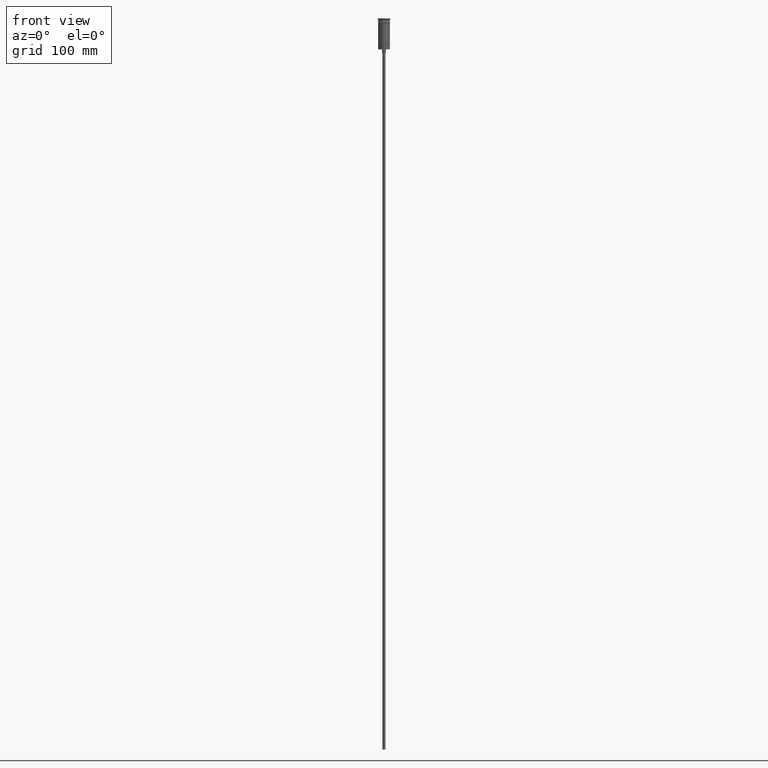
[diagram: clean part render]
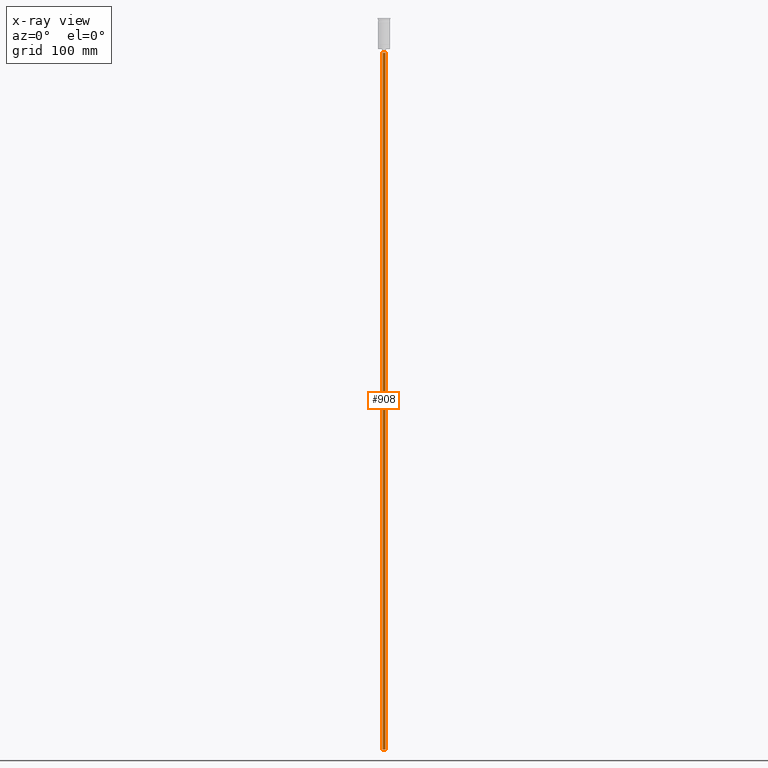
[diagram: x-ray — body ghosted, one internal face saturated and labeled with its STEP entity id]
A machine part, front view, then the same camera in x-ray: the body is ghosted and one INTERNAL B-rep face — a face not visible from any outside direction — is saturated and labeled: STEP entity #908.
In plain terms, the highlighted cylindrical surface (edge-blend (fillet) strip) has radius 1.25 mm, axis along (-0, -0, 1).
Its self-contained STEP definition (entity closure, byte-faithful):
#60 = CARTESIAN_POINT ( 'NONE',  ( 1.250000000000000000, 0.000000000000000000, -29.50000000000000000 ) ) ;
#73 = EDGE_CURVE ( 'NONE', #167, #1363, #1596, .T. ) ;
#117 = CARTESIAN_POINT ( 'NONE',  ( 0.000000000000000000, 0.000000000000000000, -626.5000000000000000 ) ) ;
#167 = VERTEX_POINT ( 'NONE', #487 ) ;
#214 = DIRECTION ( 'NONE',  ( 0.000000000000000000, 0.000000000000000000, -1.000000000000000000 ) ) ;
#241 = LINE ( 'NONE', #741, #1236 ) ;
#314 = CARTESIAN_POINT ( 'NONE',  ( 0.000000000000000000, 0.000000000000000000, -626.5000000000000000 ) ) ;
#330 = VECTOR ( 'NONE', #1095, 1000.000000000000000 ) ;
#487 = CARTESIAN_POINT ( 'NONE',  ( -1.250000000000000000, 1.530808498934191571E-16, -29.50000000000000000 ) ) ;
#528 = EDGE_CURVE ( 'NONE', #1487, #167, #241, .T. ) ;
#554 = ORIENTED_EDGE ( 'NONE', *, *, #680, .F. ) ;
#560 = CYLINDRICAL_SURFACE ( 'NONE', #1011, 1.250000000000000000 ) ;
#579 = EDGE_LOOP ( 'NONE', ( #1356, #749, #790, #554 ) ) ;
#590 = AXIS2_PLACEMENT_3D ( 'NONE', #1329, #1073, #704 ) ;
#603 = CARTESIAN_POINT ( 'NONE',  ( 1.250000000000000000, 0.000000000000000000, -626.5000000000000000 ) ) ;
#680 = EDGE_CURVE ( 'NONE', #1480, #1363, #1457, .T. ) ;
#704 = DIRECTION ( 'NONE',  ( -1.000000000000000000, 0.000000000000000000, 0.000000000000000000 ) ) ;
#741 = CARTESIAN_POINT ( 'NONE',  ( -1.250000000000000000, 1.530808498934191571E-16, -626.5000000000000000 ) ) ;
#749 = ORIENTED_EDGE ( 'NONE', *, *, #528, .T. ) ;
#790 = ORIENTED_EDGE ( 'NONE', *, *, #73, .T. ) ;
#908 = ADVANCED_FACE ( 'NONE', ( #1253 ), #560, .T. ) ;
#947 = EDGE_CURVE ( 'NONE', #1487, #1480, #1085, .T. ) ;
#967 = DIRECTION ( 'NONE',  ( -1.000000000000000000, 0.000000000000000000, 0.000000000000000000 ) ) ;
#1011 = AXIS2_PLACEMENT_3D ( 'NONE', #314, #1417, #1554 ) ;
#1073 = DIRECTION ( 'NONE',  ( 0.000000000000000000, 0.000000000000000000, -1.000000000000000000 ) ) ;
#1085 = CIRCLE ( 'NONE', #1292, 1.250000000000000000 ) ;
#1095 = DIRECTION ( 'NONE',  ( -0.000000000000000000, -0.000000000000000000, 1.000000000000000000 ) ) ;
#1236 = VECTOR ( 'NONE', #1237, 1000.000000000000000 ) ;
#1237 = DIRECTION ( 'NONE',  ( -0.000000000000000000, -0.000000000000000000, 1.000000000000000000 ) ) ;
#1253 = FACE_OUTER_BOUND ( 'NONE', #579, .T. ) ;
#1292 = AXIS2_PLACEMENT_3D ( 'NONE', #117, #214, #967 ) ;
#1307 = CARTESIAN_POINT ( 'NONE',  ( -1.250000000000000000, 1.530808498934191571E-16, -626.5000000000000000 ) ) ;
#1329 = CARTESIAN_POINT ( 'NONE',  ( 0.000000000000000000, 0.000000000000000000, -29.50000000000000000 ) ) ;
#1356 = ORIENTED_EDGE ( 'NONE', *, *, #947, .F. ) ;
#1363 = VERTEX_POINT ( 'NONE', #60 ) ;
#1417 = DIRECTION ( 'NONE',  ( -0.000000000000000000, -0.000000000000000000, 1.000000000000000000 ) ) ;
#1457 = LINE ( 'NONE', #603, #330 ) ;
#1459 = CARTESIAN_POINT ( 'NONE',  ( 1.250000000000000000, 0.000000000000000000, -626.5000000000000000 ) ) ;
#1480 = VERTEX_POINT ( 'NONE', #1459 ) ;
#1487 = VERTEX_POINT ( 'NONE', #1307 ) ;
#1554 = DIRECTION ( 'NONE',  ( 1.000000000000000000, 0.000000000000000000, 0.000000000000000000 ) ) ;
#1596 = CIRCLE ( 'NONE', #590, 1.250000000000000000 ) ;